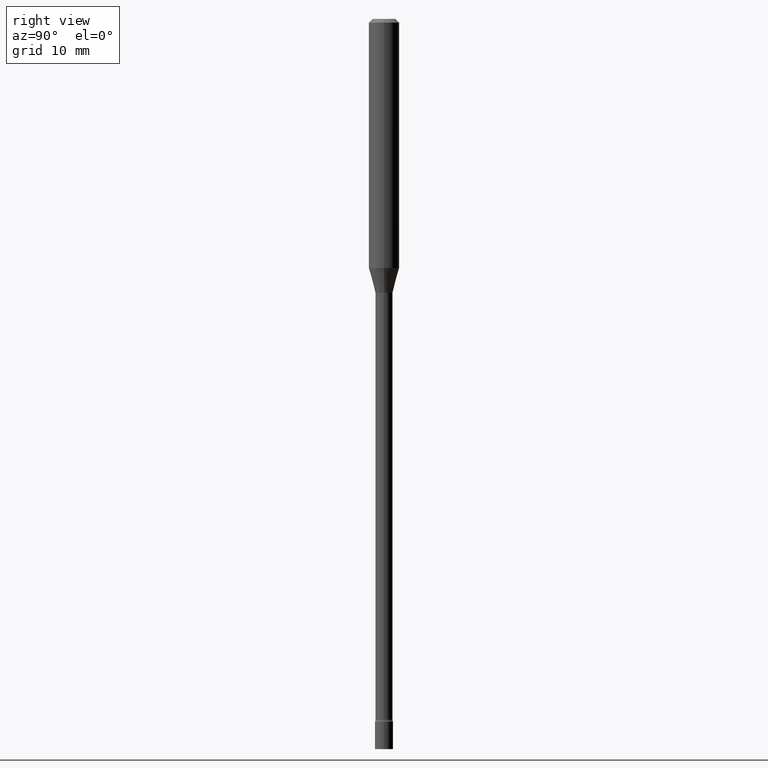
[diagram: clean part render]
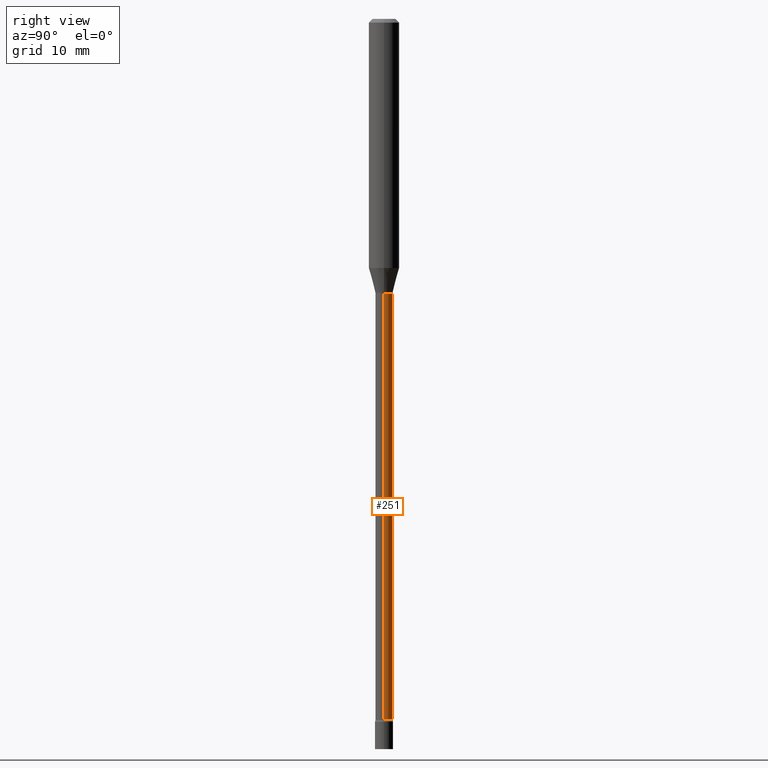
[diagram: same view with one face highlighted and labeled with its STEP entity id]
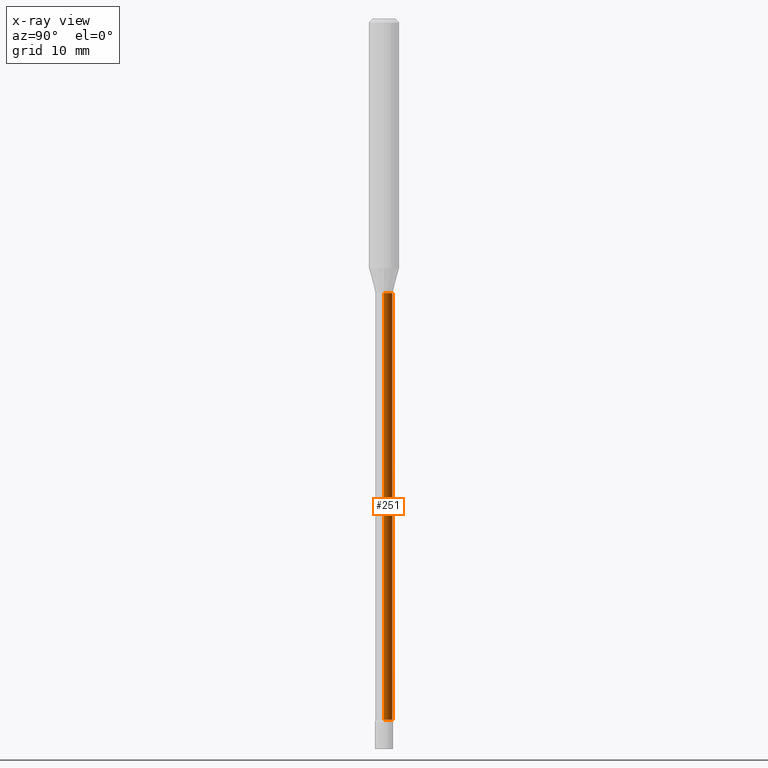
[diagram: x-ray of the same camera — body ghosted, the highlighted face saturated]
A machine part, right view. The second image highlights one B-rep face of the part: STEP entity #251.
The next image is the same camera in x-ray: the body ghosted, the highlighted face saturated — about 0% of this face is hidden behind the body in this view.
In plain terms, the highlighted cylindrical surface (edge-blend (fillet) strip) has radius 0.8954 mm, axis along (-0, 0, 1).
Its self-contained STEP definition (entity closure, byte-faithful):
#5 = AXIS2_PLACEMENT_3D ( 'NONE', #61, #25, #52 ) ;
#19 = EDGE_LOOP ( 'NONE', ( #404, #143, #474, #236 ) ) ;
#24 = LINE ( 'NONE', #187, #515 ) ;
#25 = DIRECTION ( 'NONE',  ( -2.445468806185136597E-29, 3.491481338843145583E-15, 1.000000000000000000 ) ) ;
#52 = DIRECTION ( 'NONE',  ( 1.000000000000000000, -6.982962677686270655E-15, 0.000000000000000000 ) ) ;
#61 = CARTESIAN_POINT ( 'NONE',  ( 2.755981688099874044E-29, -3.934811439776616159E-15, -1.126974787463810967 ) ) ;
#65 = CARTESIAN_POINT ( 'NONE',  ( -0.03524999999999999661, -6.743098328726474554E-15, -1.126974787463810967 ) ) ;
#71 = EDGE_CURVE ( 'NONE', #235, #321, #175, .T. ) ;
#72 = EDGE_CURVE ( 'NONE', #279, #336, #227, .T. ) ;
#92 = EDGE_CURVE ( 'NONE', #279, #235, #289, .T. ) ;
#97 = DIRECTION ( 'NONE',  ( -2.445468806185136877E-29, 3.491481338843145188E-15, 1.000000000000000000 ) ) ;
#143 = ORIENTED_EDGE ( 'NONE', *, *, #512, .T. ) ;
#146 = DIRECTION ( 'NONE',  ( -2.445468806185136597E-29, 3.491481338843145583E-15, 1.000000000000000000 ) ) ;
#175 = CIRCLE ( 'NONE', #5, 0.03524999999999999661 ) ;
#179 = CARTESIAN_POINT ( 'NONE',  ( 7.040744984002464310E-29, -1.005231784638721389E-14, -2.879098259685361150 ) ) ;
#187 = CARTESIAN_POINT ( 'NONE',  ( -0.03525000000000010764, 2.504663143554360803E-16, -1.733924619314859457E-30 ) ) ;
#216 = CARTESIAN_POINT ( 'NONE',  ( 0.03524999999999999661, -4.180960874165056840E-15, -1.126974787463810967 ) ) ;
#222 = AXIS2_PLACEMENT_3D ( 'NONE', #179, #246, #417 ) ;
#227 = CIRCLE ( 'NONE', #222, 0.03525000000000021172 ) ;
#228 = AXIS2_PLACEMENT_3D ( 'NONE', #258, #146, #501 ) ;
#235 = VERTEX_POINT ( 'NONE', #216 ) ;
#236 = ORIENTED_EDGE ( 'NONE', *, *, #92, .F. ) ;
#246 = DIRECTION ( 'NONE',  ( -2.445468806185136597E-29, 3.491481338843145583E-15, 1.000000000000000000 ) ) ;
#251 = ADVANCED_FACE ( 'NONE', ( #463 ), #300, .T. ) ;
#256 = CARTESIAN_POINT ( 'NONE',  ( -0.03525000000000021172, -9.807652315680951346E-15, -2.879098259685361150 ) ) ;
#258 = CARTESIAN_POINT ( 'NONE',  ( 0.000000000000000000, 0.000000000000000000, 0.000000000000000000 ) ) ;
#279 = VERTEX_POINT ( 'NONE', #513 ) ;
#289 = LINE ( 'NONE', #454, #290 ) ;
#290 = VECTOR ( 'NONE', #97, 39.37007874015748143 ) ;
#300 = CYLINDRICAL_SURFACE ( 'NONE', #228, 0.03525000000000010764 ) ;
#321 = VERTEX_POINT ( 'NONE', #65 ) ;
#336 = VERTEX_POINT ( 'NONE', #256 ) ;
#340 = DIRECTION ( 'NONE',  ( -2.445468806185136877E-29, 3.491481338843145188E-15, 1.000000000000000000 ) ) ;
#404 = ORIENTED_EDGE ( 'NONE', *, *, #72, .T. ) ;
#417 = DIRECTION ( 'NONE',  ( 1.000000000000000000, -6.982962677686284065E-15, 0.000000000000000000 ) ) ;
#454 = CARTESIAN_POINT ( 'NONE',  ( 0.03525000000000010764, -2.461494343884416174E-16, 1.718852313468072664E-30 ) ) ;
#463 = FACE_OUTER_BOUND ( 'NONE', #19, .T. ) ;
#474 = ORIENTED_EDGE ( 'NONE', *, *, #71, .F. ) ;
#501 = DIRECTION ( 'NONE',  ( 1.000000000000000000, -6.982962677686265922E-15, 4.876176775795935793E-29 ) ) ;
#512 = EDGE_CURVE ( 'NONE', #336, #321, #24, .T. ) ;
#513 = CARTESIAN_POINT ( 'NONE',  ( 0.03525000000000021172, -1.029846728077565772E-14, -2.879098259685361150 ) ) ;
#515 = VECTOR ( 'NONE', #340, 39.37007874015748143 ) ;